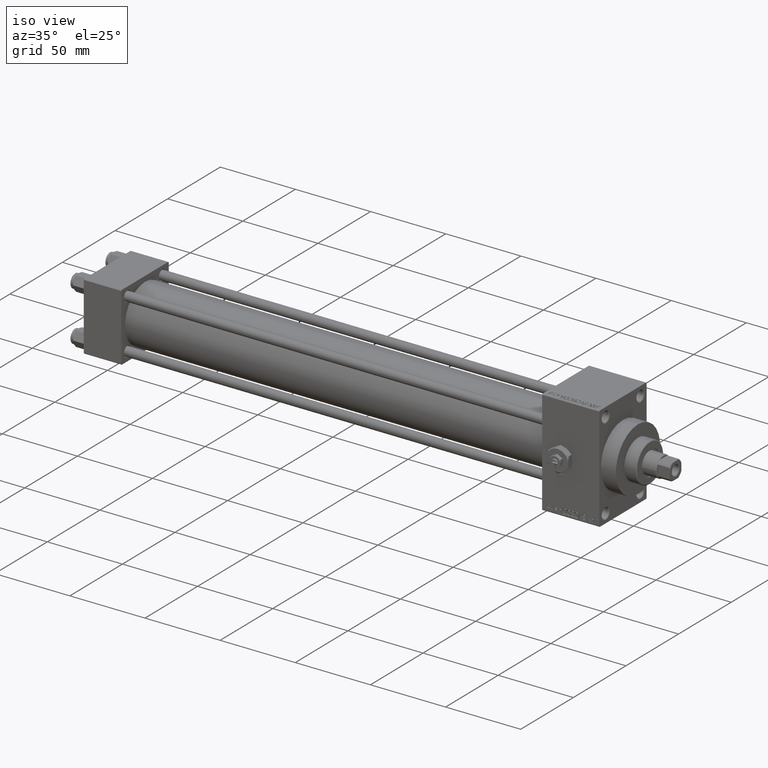
[diagram: clean part render]
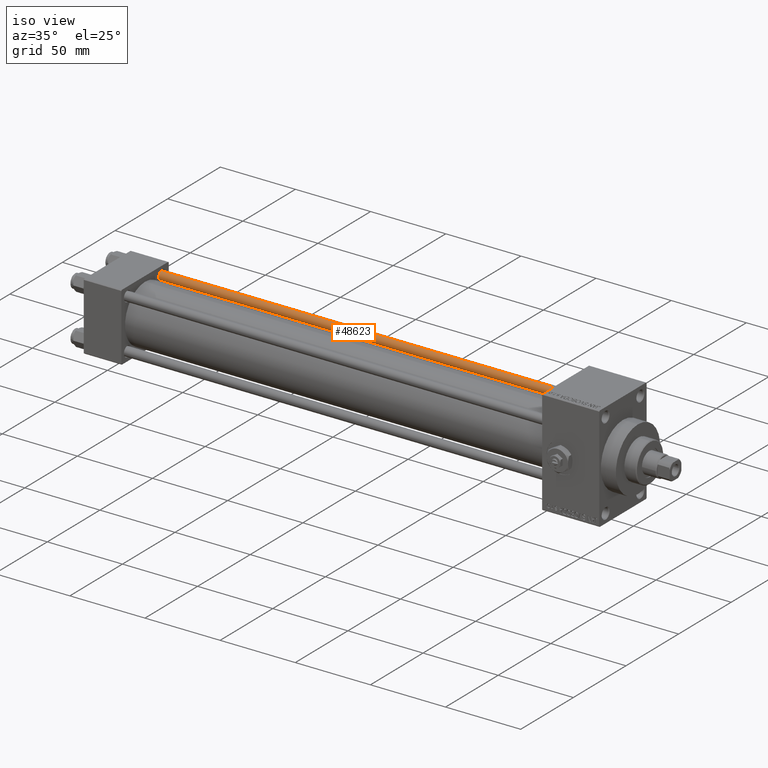
[diagram: same view with one face highlighted and labeled with its STEP entity id]
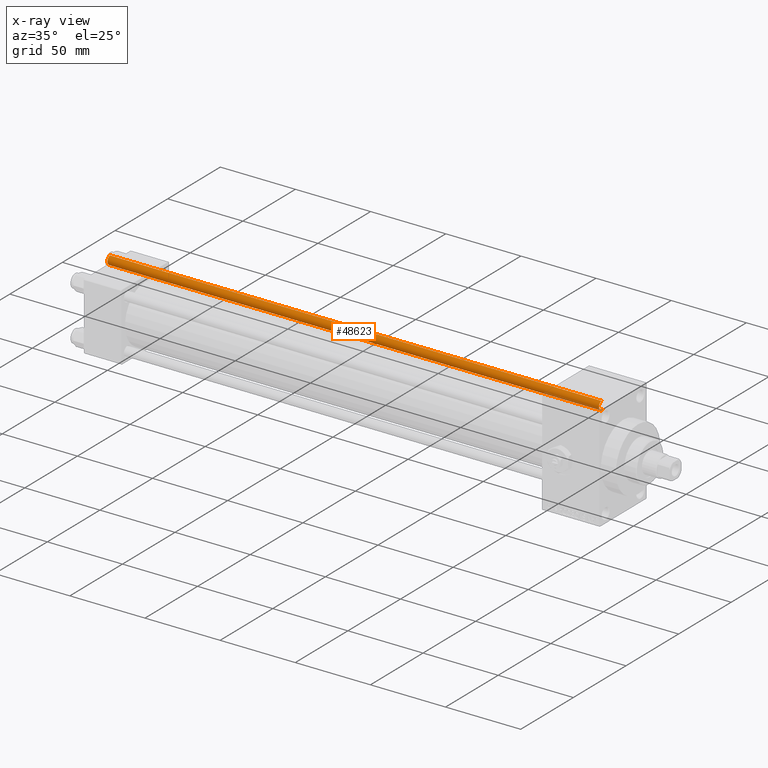
[diagram: x-ray of the same camera — body ghosted, the highlighted face saturated]
A machine part, iso view. The second image highlights one B-rep face of the part: STEP entity #48623.
The next image is the same camera in x-ray: the body ghosted, the highlighted face saturated — about 2% of this face is hidden behind the body in this view.
In plain terms, the highlighted cylindrical surface (edge-blend (fillet) strip) has radius 3 mm, axis along (-1, -0, 0).
Its self-contained STEP definition (entity closure, byte-faithful):
#415 = CIRCLE ( 'NONE', #10594, 3.000000000000000444 ) ;
#1312 = EDGE_CURVE ( 'NONE', #22839, #38762, #5471, .T. ) ;
#5471 = CIRCLE ( 'NONE', #18004, 3.000000000000000444 ) ;
#6845 = ORIENTED_EDGE ( 'NONE', *, *, #37874, .T. ) ;
#7084 = VERTEX_POINT ( 'NONE', #17896 ) ;
#7998 = VERTEX_POINT ( 'NONE', #22503 ) ;
#10594 = AXIS2_PLACEMENT_3D ( 'NONE', #10872, #40865, #26117 ) ;
#10872 = CARTESIAN_POINT ( 'NONE',  ( 0.000000000000000000, 0.000000000000000000, 0.5000000000000559552 ) ) ;
#11923 = ORIENTED_EDGE ( 'NONE', *, *, #24794, .T. ) ;
#12674 = DIRECTION ( 'NONE',  ( -0.000000000000000000, -0.000000000000000000, -1.000000000000000000 ) ) ;
#12712 = EDGE_CURVE ( 'NONE', #22839, #7998, #25495, .T. ) ;
#12724 = CARTESIAN_POINT ( 'NONE',  ( 0.000000000000000000, 0.000000000000000000, 327.5000000000000000 ) ) ;
#13514 = CYLINDRICAL_SURFACE ( 'NONE', #39985, 3.000000000000000444 ) ;
#14737 = CARTESIAN_POINT ( 'NONE',  ( 3.000000000000000444, 3.673940397442060361E-16, 327.5000000000000000 ) ) ;
#15877 = LINE ( 'NONE', #20044, #36816 ) ;
#17896 = CARTESIAN_POINT ( 'NONE',  ( -3.000000000000000444, 0.000000000000000000, 0.5000000000000559552 ) ) ;
#18004 = AXIS2_PLACEMENT_3D ( 'NONE', #12724, #41980, #23289 ) ;
#20044 = CARTESIAN_POINT ( 'NONE',  ( -3.000000000000000444, 0.000000000000000000, 328.0000000000000000 ) ) ;
#21323 = CARTESIAN_POINT ( 'NONE',  ( 3.000000000000000444, 3.673940397442060361E-16, 328.0000000000000000 ) ) ;
#22503 = CARTESIAN_POINT ( 'NONE',  ( 3.000000000000000444, 3.673940397442060361E-16, 0.5000000000000559552 ) ) ;
#22839 = VERTEX_POINT ( 'NONE', #14737 ) ;
#23289 = DIRECTION ( 'NONE',  ( 1.000000000000000000, 0.000000000000000000, 0.000000000000000000 ) ) ;
#24794 = EDGE_CURVE ( 'NONE', #7084, #7998, #415, .T. ) ;
#25238 = ORIENTED_EDGE ( 'NONE', *, *, #1312, .T. ) ;
#25301 = DIRECTION ( 'NONE',  ( -0.000000000000000000, -0.000000000000000000, -1.000000000000000000 ) ) ;
#25495 = LINE ( 'NONE', #21323, #32984 ) ;
#26117 = DIRECTION ( 'NONE',  ( 1.000000000000000000, 0.000000000000000000, 0.000000000000000000 ) ) ;
#32178 = FACE_OUTER_BOUND ( 'NONE', #37461, .T. ) ;
#32984 = VECTOR ( 'NONE', #44170, 1000.000000000000000 ) ;
#36816 = VECTOR ( 'NONE', #12674, 1000.000000000000000 ) ;
#37073 = DIRECTION ( 'NONE',  ( -1.000000000000000000, 0.000000000000000000, 0.000000000000000000 ) ) ;
#37461 = EDGE_LOOP ( 'NONE', ( #46365, #25238, #6845, #11923 ) ) ;
#37874 = EDGE_CURVE ( 'NONE', #38762, #7084, #15877, .T. ) ;
#38762 = VERTEX_POINT ( 'NONE', #44414 ) ;
#39985 = AXIS2_PLACEMENT_3D ( 'NONE', #43493, #25301, #37073 ) ;
#40865 = DIRECTION ( 'NONE',  ( -0.000000000000000000, -0.000000000000000000, 1.000000000000000000 ) ) ;
#41980 = DIRECTION ( 'NONE',  ( 0.000000000000000000, 0.000000000000000000, -1.000000000000000000 ) ) ;
#43493 = CARTESIAN_POINT ( 'NONE',  ( 0.000000000000000000, 0.000000000000000000, 328.0000000000000000 ) ) ;
#44170 = DIRECTION ( 'NONE',  ( -0.000000000000000000, -0.000000000000000000, -1.000000000000000000 ) ) ;
#44414 = CARTESIAN_POINT ( 'NONE',  ( -3.000000000000000444, 0.000000000000000000, 327.5000000000000000 ) ) ;
#46365 = ORIENTED_EDGE ( 'NONE', *, *, #12712, .F. ) ;
#48623 = ADVANCED_FACE ( 'NONE', ( #32178 ), #13514, .T. ) ;